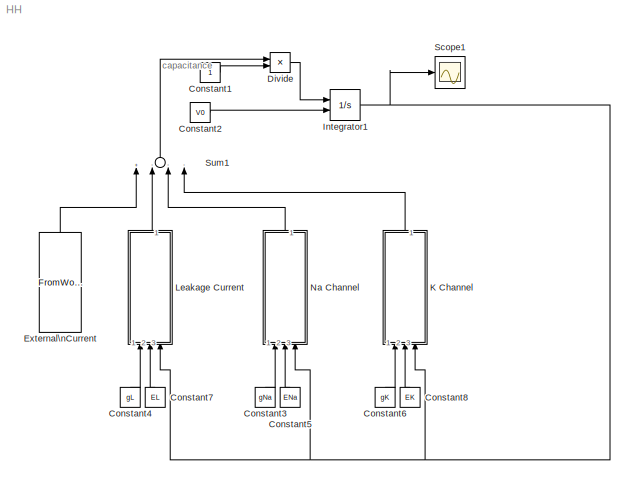
MODEL HH
KIND model
BLOCK [Constant] Constant1
  SID = 1
BLOCK [Constant] Constant2
  SID = 2
  Value = V0
BLOCK [Constant] Constant3
  SID = 3
  Value = gNa
BLOCK [Constant] Constant4
  SID = 4
  Value = gL
BLOCK [Constant] Constant5
  SID = 5
  Value = ENa
BLOCK [Constant] Constant6
  SID = 6
  Value = gK
BLOCK [Constant] Constant7
  SID = 7
  Value = EL
BLOCK [Constant] Constant8
  SID = 8
  Value = EK
BLOCK [Product] Divide
  InputSameDT = off
  Inputs = */
  OutDataTypeStr = Inherit: Inherit via internal rule
  Ports = [2, 1]
  RndMeth = Floor
  SID = 9
  SaturateOnIntegerOverflow = off
BLOCK [FromWorkspace] External\nCurrent
  SID = 10
  SampleTime = 0
  VariableName = I_ext
  ZeroCross = on
BLOCK [Integrator] Integrator1
  InitialConditionSource = external
  Ports = [2, 1]
  SID = 11
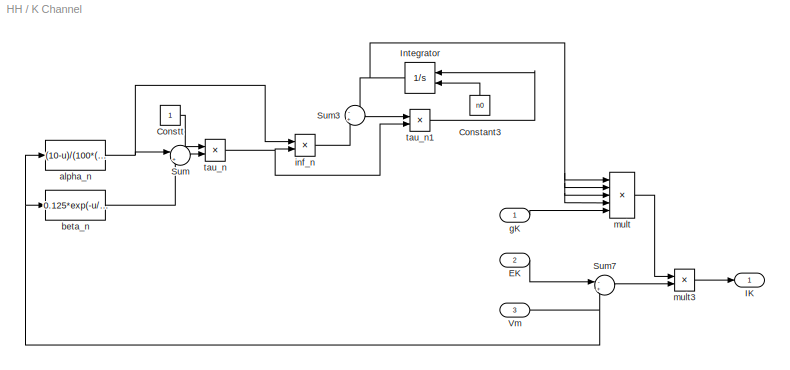
BLOCK [SubSystem] K Channel
  Ports = [3, 1]
  RequestExecContextInheritance = off
  SID = 12
BLOCK [Constant] K Channel/Constant3
  SID = 16
  Value = n0
BLOCK [Constant] K Channel/Constt
  SID = 17
BLOCK [Inport] K Channel/EK
  IconDisplay = Port number
  Port = 2
  SID = 14
BLOCK [Outport] K Channel/IK
  IconDisplay = Port number
  SID = 29
BLOCK [Integrator] K Channel/Integrator
  InitialConditionSource = external
  Ports = [2, 1]
  SID = 18
BLOCK [Sum] K Channel/Sum
  IconShape = round
  InputSameDT = off
  Inputs = |++
  OutDataTypeStr = Inherit: Inherit via internal rule
  Ports = [2, 1]
  SID = 19
  SaturateOnIntegerOverflow = off
BLOCK [Sum] K Channel/Sum3
  IconShape = round
  InputSameDT = off
  Inputs = -+
  OutDataTypeStr = Inherit: Inherit via internal rule
  Ports = [2, 1]
  SID = 20
  SaturateOnIntegerOverflow = off
BLOCK [Sum] K Channel/Sum7
  IconShape = round
  InputSameDT = off
  Inputs = -+
  OutDataTypeStr = Inherit: Inherit via internal rule
  Ports = [2, 1]
  SID = 21
  SaturateOnIntegerOverflow = off
BLOCK [Inport] K Channel/Vm
  IconDisplay = Port number
  Port = 3
  SID = 15
BLOCK [Fcn] K Channel/alpha_n
  Expr = (10-u)/(100*(exp((10-u)/10)-1))
  SID = 22
BLOCK [Fcn] K Channel/beta_n
  Expr = 0.125*exp(-u/80)
  SID = 23
BLOCK [Inport] K Channel/gK
  IconDisplay = Port number
  SID = 13
BLOCK [Product] K Channel/inf_n
  InputSameDT = off
  Inputs = **
  OutDataTypeStr = Inherit: Inherit via internal rule
  Ports = [2, 1]
  RndMeth = Floor
  SID = 24
  SaturateOnIntegerOverflow = off
BLOCK [Product] K Channel/mult
  InputSameDT = off
  Inputs = *****
  OutDataTypeStr = Inherit: Inherit via internal rule
  Ports = [5, 1]
  RndMeth = Floor
  SID = 25
  SaturateOnIntegerOverflow = off
BLOCK [Product] K Channel/mult3
  InputSameDT = off
  Inputs = **
  OutDataTypeStr = Inherit: Inherit via internal rule
  Ports = [2, 1]
  RndMeth = Floor
  SID = 26
  SaturateOnIntegerOverflow = off
BLOCK [Product] K Channel/tau_n
  InputSameDT = off
  Inputs = */
  OutDataTypeStr = Inherit: Inherit via internal rule
  Ports = [2, 1]
  RndMeth = Floor
  SID = 27
  SaturateOnIntegerOverflow = off
BLOCK [Product] K Channel/tau_n1
  InputSameDT = off
  Inputs = */
  OutDataTypeStr = Inherit: Inherit via internal rule
  Ports = [2, 1]
  RndMeth = Floor
  SID = 28
  SaturateOnIntegerOverflow = off
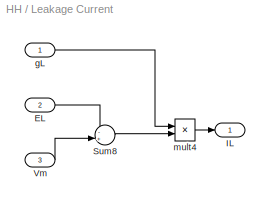
BLOCK [SubSystem] Leakage Current
  Ports = [3, 1]
  RequestExecContextInheritance = off
  SID = 30
BLOCK [Inport] Leakage Current/EL
  IconDisplay = Port number
  Port = 2
  SID = 32
BLOCK [Outport] Leakage Current/IL
  IconDisplay = Port number
  SID = 36
BLOCK [Sum] Leakage Current/Sum8
  IconShape = round
  InputSameDT = off
  Inputs = -+
  OutDataTypeStr = Inherit: Inherit via internal rule
  Ports = [2, 1]
  SID = 34
  SaturateOnIntegerOverflow = off
BLOCK [Inport] Leakage Current/Vm
  IconDisplay = Port number
  Port = 3
  SID = 33
BLOCK [Inport] Leakage Current/gL
  IconDisplay = Port number
  SID = 31
BLOCK [Product] Leakage Current/mult4
  InputSameDT = off
  Inputs = **
  OutDataTypeStr = Inherit: Inherit via internal rule
  Ports = [2, 1]
  RndMeth = Floor
  SID = 35
  SaturateOnIntegerOverflow = off
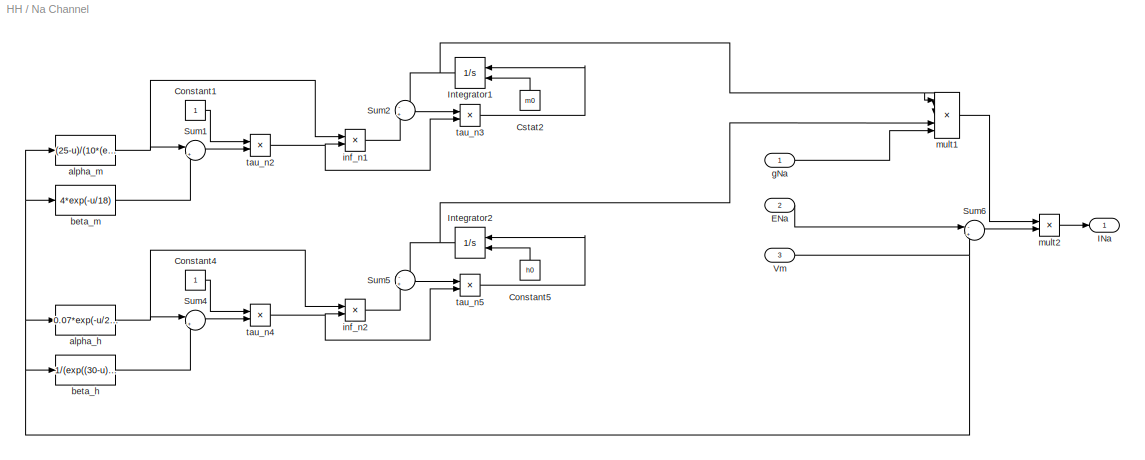
BLOCK [SubSystem] Na Channel
  Ports = [3, 1]
  RequestExecContextInheritance = off
  SID = 37
BLOCK [Constant] Na Channel/Constant1
  SID = 41
BLOCK [Constant] Na Channel/Constant4
  SID = 42
BLOCK [Constant] Na Channel/Constant5
  SID = 43
  Value = h0
BLOCK [Constant] Na Channel/Cstat2
  SID = 44
  Value = m0
BLOCK [Inport] Na Channel/ENa
  IconDisplay = Port number
  Port = 2
  SID = 39
BLOCK [Outport] Na Channel/INa
  IconDisplay = Port number
  SID = 64
BLOCK [Integrator] Na Channel/Integrator1
  InitialConditionSource = external
  Ports = [2, 1]
  SID = 45
BLOCK [Integrator] Na Channel/Integrator2
  InitialConditionSource = external
  Ports = [2, 1]
  SID = 46
BLOCK [Sum] Na Channel/Sum1
  IconShape = round
  InputSameDT = off
  Inputs = |++
  OutDataTypeStr = Inherit: Inherit via internal rule
  Ports = [2, 1]
  SID = 47
  SaturateOnIntegerOverflow = off
BLOCK [Sum] Na Channel/Sum2
  IconShape = round
  InputSameDT = off
  Inputs = -+
  OutDataTypeStr = Inherit: Inherit via internal rule
  Ports = [2, 1]
  SID = 48
  SaturateOnIntegerOverflow = off
BLOCK [Sum] Na Channel/Sum4
  IconShape = round
  InputSameDT = off
  Inputs = |++
  OutDataTypeStr = Inherit: Inherit via internal rule
  Ports = [2, 1]
  SID = 49
  SaturateOnIntegerOverflow = off
BLOCK [Sum] Na Channel/Sum5
  IconShape = round
  InputSameDT = off
  Inputs = -+
  OutDataTypeStr = Inherit: Inherit via internal rule
  Ports = [2, 1]
  SID = 50
  SaturateOnIntegerOverflow = off
BLOCK [Sum] Na Channel/Sum6
  IconShape = round
  InputSameDT = off
  Inputs = -+
  OutDataTypeStr = Inherit: Inherit via internal rule
  Ports = [2, 1]
  SID = 51
  SaturateOnIntegerOverflow = off
BLOCK [Inport] Na Channel/Vm
  IconDisplay = Port number
  Port = 3
  SID = 40
BLOCK [Fcn] Na Channel/alpha_h
  Expr = 0.07*exp(-u/20)
  SID = 52
BLOCK [Fcn] Na Channel/alpha_m
  Expr = (25-u)/(10*(exp((25-u)/10)-1))
  SID = 53
BLOCK [Fcn] Na Channel/beta_h
  Expr = 1/(exp((30-u)/10)+1)
  SID = 54
BLOCK [Fcn] Na Channel/beta_m
  Expr = 4*exp(-u/18)
  SID = 55
BLOCK [Inport] Na Channel/gNa
  IconDisplay = Port number
  SID = 38
BLOCK [Product] Na Channel/inf_n1
  InputSameDT = off
  Inputs = **
  OutDataTypeStr = Inherit: Inherit via internal rule
  Ports = [2, 1]
  RndMeth = Floor
  SID = 56
  SaturateOnIntegerOverflow = off
BLOCK [Product] Na Channel/inf_n2
  InputSameDT = off
  Inputs = **
  OutDataTypeStr = Inherit: Inherit via internal rule
  Ports = [2, 1]
  RndMeth = Floor
  SID = 57
  SaturateOnIntegerOverflow = off
BLOCK [Product] Na Channel/mult1
  InputSameDT = off
  Inputs = *****
  OutDataTypeStr = Inherit: Inherit via internal rule
  Ports = [5, 1]
  RndMeth = Floor
  SID = 58
  SaturateOnIntegerOverflow = off
BLOCK [Product] Na Channel/mult2
  InputSameDT = off
  Inputs = **
  OutDataTypeStr = Inherit: Inherit via internal rule
  Ports = [2, 1]
  RndMeth = Floor
  SID = 59
  SaturateOnIntegerOverflow = off
BLOCK [Product] Na Channel/tau_n2
  InputSameDT = off
  Inputs = */
  OutDataTypeStr = Inherit: Inherit via internal rule
  Ports = [2, 1]
  RndMeth = Floor
  SID = 60
  SaturateOnIntegerOverflow = off
BLOCK [Product] Na Channel/tau_n3
  InputSameDT = off
  Inputs = */
  OutDataTypeStr = Inherit: Inherit via internal rule
  Ports = [2, 1]
  RndMeth = Floor
  SID = 61
  SaturateOnIntegerOverflow = off
BLOCK [Product] Na Channel/tau_n4
  InputSameDT = off
  Inputs = */
  OutDataTypeStr = Inherit: Inherit via internal rule
  Ports = [2, 1]
  RndMeth = Floor
  SID = 62
  SaturateOnIntegerOverflow = off
BLOCK [Product] Na Channel/tau_n5
  InputSameDT = off
  Inputs = */
  OutDataTypeStr = Inherit: Inherit via internal rule
  Ports = [2, 1]
  RndMeth = Floor
  SID = 63
  SaturateOnIntegerOverflow = off
BLOCK [Scope] Scope1
  Floating = off
  NumInputPorts = 1
  Ports = [1]
  SID = 65
  ScopeSpecificationString = C++SS(StrPVP('Location','[5, 49, 1445, 903]'),StrPVP('Open','off'),MxPVP('AxesTitles',53,'struct(''axes1'',''%<SignalLabel>'')'),StrPVP('YMin','1.35'),StrPVP('YMax','1.95'),StrPVP('DataFormat','StructureWithTime'),StrPVP('LimitDataPoints','off'),StrPVP('BlockParamSampleTime','0'),StrPVP('Decimation','1'),StrPVP('BlockParamSampleInput','off'))
BLOCK [Sum] Sum1
  InputSameDT = off
  Inputs = +---
  OutDataTypeStr = Inherit: Inherit via internal rule
  Ports = [4, 1]
  SID = 66
  SaturateOnIntegerOverflow = off
ANNOTATION (root): capacitance
LINE Constant1:1 -> Divide:2
LINE Constant2:1 -> Integrator1:2
LINE Constant3:1 -> Na Channel:1
LINE Constant4:1 -> Leakage Current:1
LINE Constant5:1 -> Na Channel:2
LINE Constant6:1 -> K Channel:1
LINE Constant7:1 -> Leakage Current:2
LINE Constant8:1 -> K Channel:2
LINE Divide:1 -> Integrator1:1
LINE External\nCurrent:1 -> Sum1:1
NET Integrator1:1 -> K Channel:3, Leakage Current:3, Na Channel:3, Scope1:1
LINE K Channel/Constant3:1 -> K Channel/Integrator:2
LINE K Channel/Constt:1 -> K Channel/tau_n:1
LINE K Channel/EK:1 -> K Channel/Sum7:1
NET K Channel/Integrator:1 -> K Channel/Sum3:1, K Channel/mult:1, K Channel/mult:2, K Channel/mult:3, K Channel/mult:4
LINE K Channel/Sum3:1 -> K Channel/tau_n1:1
LINE K Channel/Sum7:1 -> K Channel/mult3:2
LINE K Channel/Sum:1 -> K Channel/tau_n:2
NET K Channel/Vm:1 -> K Channel/Sum7:2, K Channel/alpha_n:1, K Channel/beta_n:1
NET K Channel/alpha_n:1 -> K Channel/Sum:1, K Channel/inf_n:1
LINE K Channel/beta_n:1 -> K Channel/Sum:2
LINE K Channel/gK:1 -> K Channel/mult:5
LINE K Channel/inf_n:1 -> K Channel/Sum3:2
LINE K Channel/mult3:1 -> K Channel/IK:1
LINE K Channel/mult:1 -> K Channel/mult3:1
LINE K Channel/tau_n1:1 -> K Channel/Integrator:1
NET K Channel/tau_n:1 -> K Channel/inf_n:2, K Channel/tau_n1:2
LINE K Channel:1 -> Sum1:4
LINE Leakage Current/EL:1 -> Leakage Current/Sum8:1
LINE Leakage Current/Sum8:1 -> Leakage Current/mult4:2
LINE Leakage Current/Vm:1 -> Leakage Current/Sum8:2
LINE Leakage Current/gL:1 -> Leakage Current/mult4:1
LINE Leakage Current/mult4:1 -> Leakage Current/IL:1
LINE Leakage Current:1 -> Sum1:2
LINE Na Channel/Constant1:1 -> Na Channel/tau_n2:1
LINE Na Channel/Constant4:1 -> Na Channel/tau_n4:1
LINE Na Channel/Constant5:1 -> Na Channel/Integrator2:2
LINE Na Channel/Cstat2:1 -> Na Channel/Integrator1:2
LINE Na Channel/ENa:1 -> Na Channel/Sum6:1
NET Na Channel/Integrator1:1 -> Na Channel/Sum2:1, Na Channel/mult1:1, Na Channel/mult1:2, Na Channel/mult1:3
NET Na Channel/Integrator2:1 -> Na Channel/Sum5:1, Na Channel/mult1:4
LINE Na Channel/Sum1:1 -> Na Channel/tau_n2:2
LINE Na Channel/Sum2:1 -> Na Channel/tau_n3:1
LINE Na Channel/Sum4:1 -> Na Channel/tau_n4:2
LINE Na Channel/Sum5:1 -> Na Channel/tau_n5:1
LINE Na Channel/Sum6:1 -> Na Channel/mult2:2
NET Na Channel/Vm:1 -> Na Channel/Sum6:2, Na Channel/alpha_h:1, Na Channel/alpha_m:1, Na Channel/beta_h:1, Na Channel/beta_m:1
NET Na Channel/alpha_h:1 -> Na Channel/Sum4:1, Na Channel/inf_n2:1
NET Na Channel/alpha_m:1 -> Na Channel/Sum1:1, Na Channel/inf_n1:1
LINE Na Channel/beta_h:1 -> Na Channel/Sum4:2
LINE Na Channel/beta_m:1 -> Na Channel/Sum1:2
LINE Na Channel/gNa:1 -> Na Channel/mult1:5
LINE Na Channel/inf_n1:1 -> Na Channel/Sum2:2
LINE Na Channel/inf_n2:1 -> Na Channel/Sum5:2
LINE Na Channel/mult1:1 -> Na Channel/mult2:1
LINE Na Channel/mult2:1 -> Na Channel/INa:1
NET Na Channel/tau_n2:1 -> Na Channel/inf_n1:2, Na Channel/tau_n3:2
LINE Na Channel/tau_n3:1 -> Na Channel/Integrator1:1
NET Na Channel/tau_n4:1 -> Na Channel/inf_n2:2, Na Channel/tau_n5:2
LINE Na Channel/tau_n5:1 -> Na Channel/Integrator2:1
LINE Na Channel:1 -> Sum1:3
LINE Sum1:1 -> Divide:1
note: NET lines group one-source signal fan-out (src -> all destinations, sorted); 1:1 wires keep LINE
